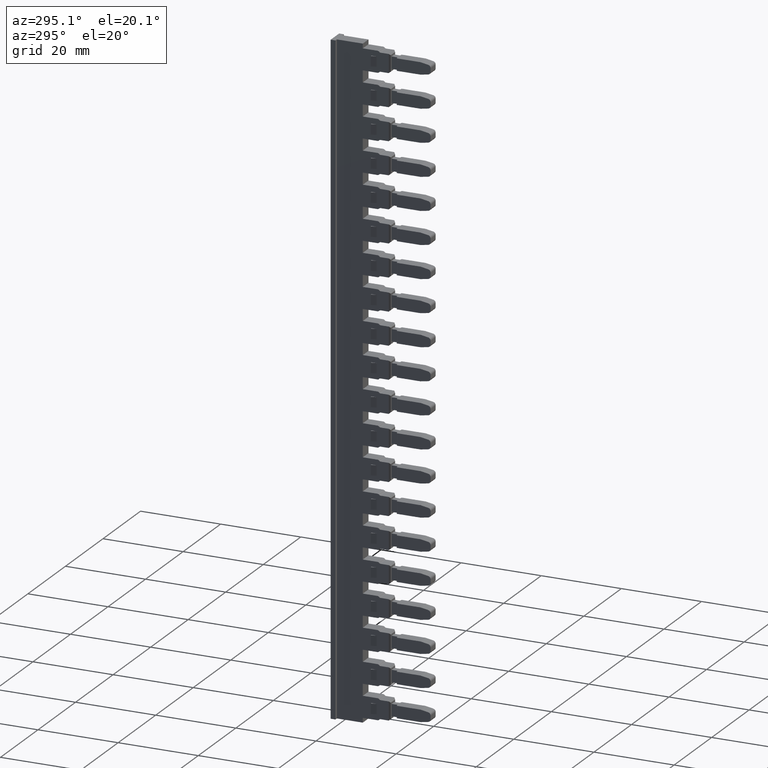
[diagram: clean part render]
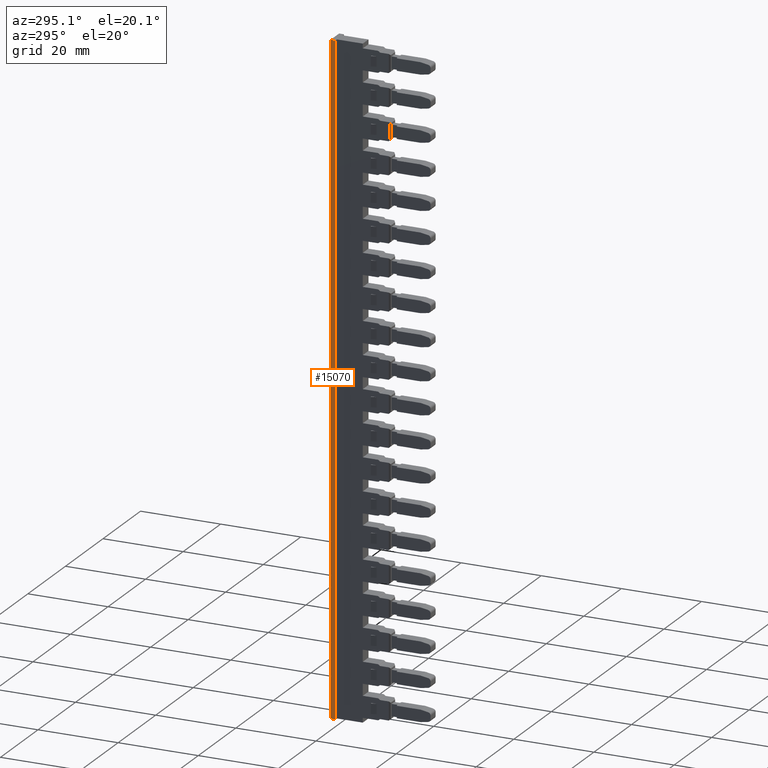
[diagram: same view with one face highlighted and labeled with its STEP entity id]
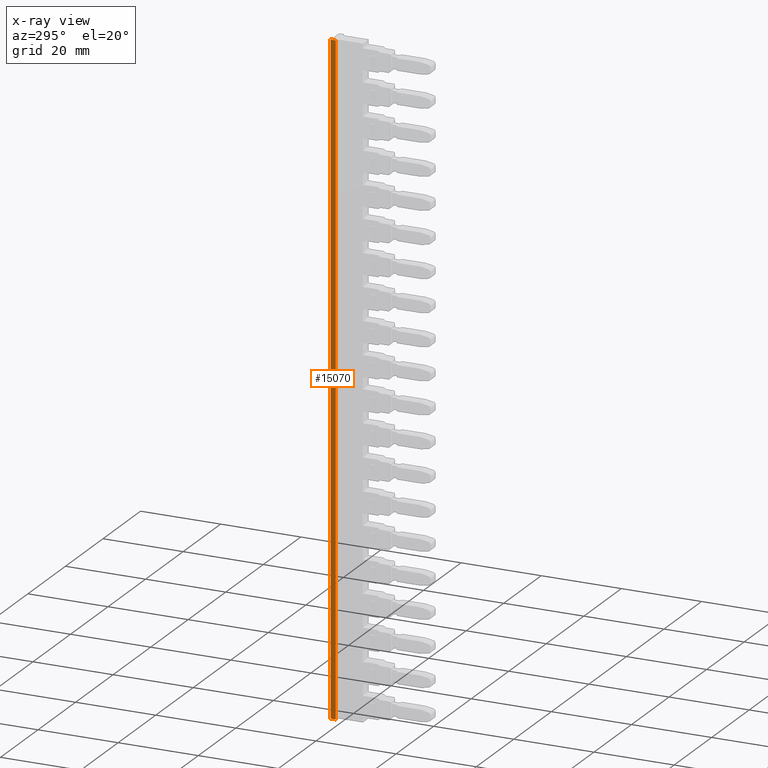
[diagram: x-ray of the same camera — body ghosted, the highlighted face saturated]
A machine part, auxiliary view. The second image highlights one B-rep face of the part: STEP entity #15070.
The next image is the same camera in x-ray: the body ghosted, the highlighted face saturated — about 0% of this face is hidden behind the body in this view.
In plain terms, the highlighted planar face has unit normal (-1, 0, -0).
Its self-contained STEP definition (entity closure, byte-faithful):
#16 = ORIENTED_EDGE ( 'NONE', *, *, #16177, .T. ) ;
#1736 = AXIS2_PLACEMENT_3D ( 'NONE', #22769, #22783, #22789 ) ;
#2189 = VECTOR ( 'NONE', #21617, 1000.000000000000000 ) ;
#2193 = VECTOR ( 'NONE', #21573, 1000.000000000000000 ) ;
#2273 = VECTOR ( 'NONE', #21711, 1000.000000000000000 ) ;
#2281 = VECTOR ( 'NONE', #21727, 1000.000000000000000 ) ;
#3251 = CARTESIAN_POINT ( 'NONE',  ( 108.4952529172782200, 259.1101602476019800, 173.0398226793859900 ) ) ;
#3372 = CARTESIAN_POINT ( 'NONE',  ( 108.4952529172783100, 259.1101602476009000, 9.639822679385984500 ) ) ;
#3378 = CARTESIAN_POINT ( 'NONE',  ( 108.4952529172782200, 260.3101602476015700, 173.0398226793859900 ) ) ;
#3404 = CARTESIAN_POINT ( 'NONE',  ( 108.4952529172783100, 260.3101602476004900, 9.639822679385984500 ) ) ;
#13244 = EDGE_LOOP ( 'NONE', ( #14429, #16, #14410, #14436 ) ) ;
#14410 = ORIENTED_EDGE ( 'NONE', *, *, #16144, .F. ) ;
#14429 = ORIENTED_EDGE ( 'NONE', *, *, #16196, .T. ) ;
#14436 = ORIENTED_EDGE ( 'NONE', *, *, #16142, .T. ) ;
#15070 = ADVANCED_FACE ( 'NONE', ( #22796 ), #22800, .T. ) ;
#15385 = VERTEX_POINT ( 'NONE', #3251 ) ;
#15421 = VERTEX_POINT ( 'NONE', #3378 ) ;
#15425 = VERTEX_POINT ( 'NONE', #3404 ) ;
#15442 = VERTEX_POINT ( 'NONE', #3372 ) ;
#16142 = EDGE_CURVE ( 'NONE', #15385, #15421, #21563, .T. ) ;
#16144 = EDGE_CURVE ( 'NONE', #15385, #15442, #21558, .T. ) ;
#16177 = EDGE_CURVE ( 'NONE', #15425, #15442, #21687, .T. ) ;
#16196 = EDGE_CURVE ( 'NONE', #15421, #15425, #21745, .T. ) ;
#21537 = CARTESIAN_POINT ( 'NONE',  ( 108.4952529172782200, 259.1101602476019300, 193.7370111674605100 ) ) ;
#21558 = LINE ( 'NONE', #21537, #2189 ) ;
#21562 = CARTESIAN_POINT ( 'NONE',  ( 108.4952529172782200, 259.1101602476019800, 173.0398226793859900 ) ) ;
#21563 = LINE ( 'NONE', #21562, #2193 ) ;
#21573 = DIRECTION ( 'NONE',  ( 0.0000000000000000000, 1.000000000000000000, 0.0000000000000000000 ) ) ;
#21617 = DIRECTION ( 'NONE',  ( 0.0000000000000000000, -1.944757394685670000E-028, -1.000000000000000000 ) ) ;
#21687 = LINE ( 'NONE', #21708, #2273 ) ;
#21708 = CARTESIAN_POINT ( 'NONE',  ( 108.4952529172783400, 259.1101602476009000, 9.639822679385984500 ) ) ;
#21711 = DIRECTION ( 'NONE',  ( -0.0000000000000000000, -1.000000000000000000, -0.0000000000000000000 ) ) ;
#21727 = DIRECTION ( 'NONE',  ( -7.847720069483336500E-029, 2.968510761029624900E-015, -1.000000000000000000 ) ) ;
#21737 = CARTESIAN_POINT ( 'NONE',  ( 108.4952529172782200, 260.3101602476013500, 228.6398226793851100 ) ) ;
#21745 = LINE ( 'NONE', #21737, #2281 ) ;
#22769 = CARTESIAN_POINT ( 'NONE',  ( 108.4952529172783400, 259.1101602476019300, 149.0398226793859900 ) ) ;
#22783 = DIRECTION ( 'NONE',  ( -1.000000000000000000, 0.0000000000000000000, -7.026728003956671600E-015 ) ) ;
#22789 = DIRECTION ( 'NONE',  ( -7.026728003956671600E-015, 0.0000000000000000000, 1.000000000000000000 ) ) ;
#22796 = FACE_OUTER_BOUND ( 'NONE', #13244, .T. ) ;
#22800 = PLANE ( 'NONE',  #1736 ) ;